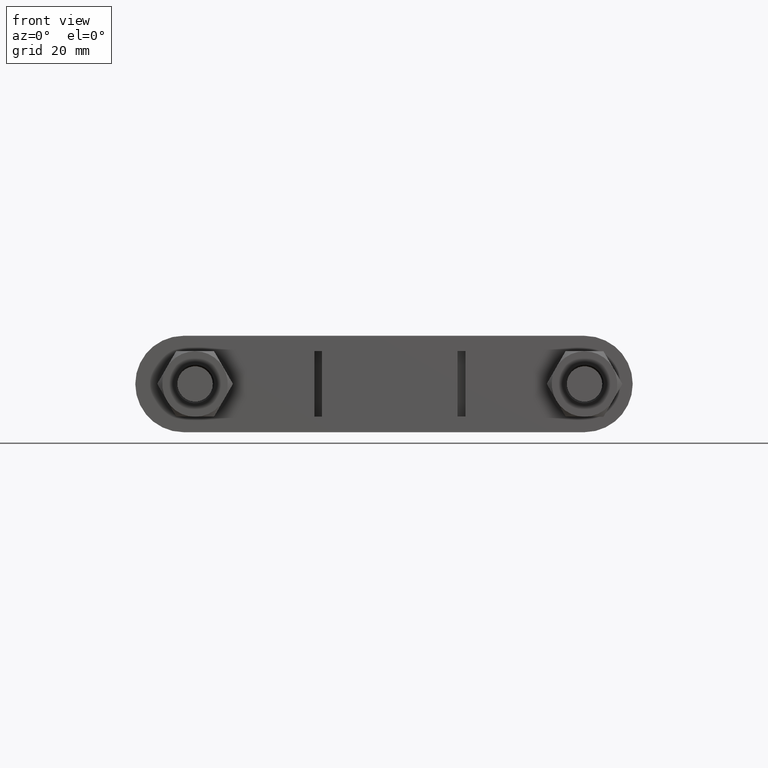
[diagram: clean part render]
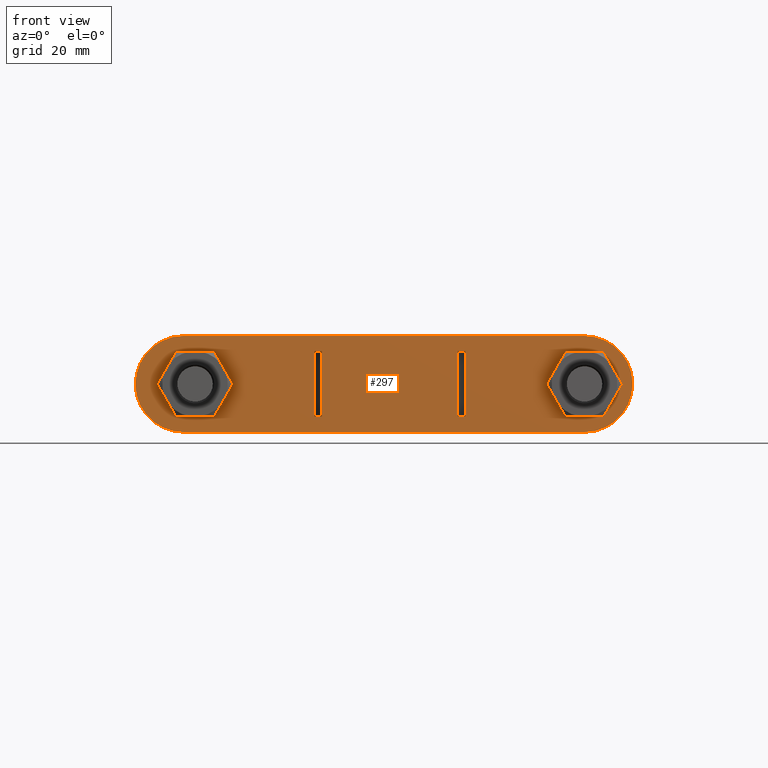
[diagram: same view with one face highlighted and labeled with its STEP entity id]
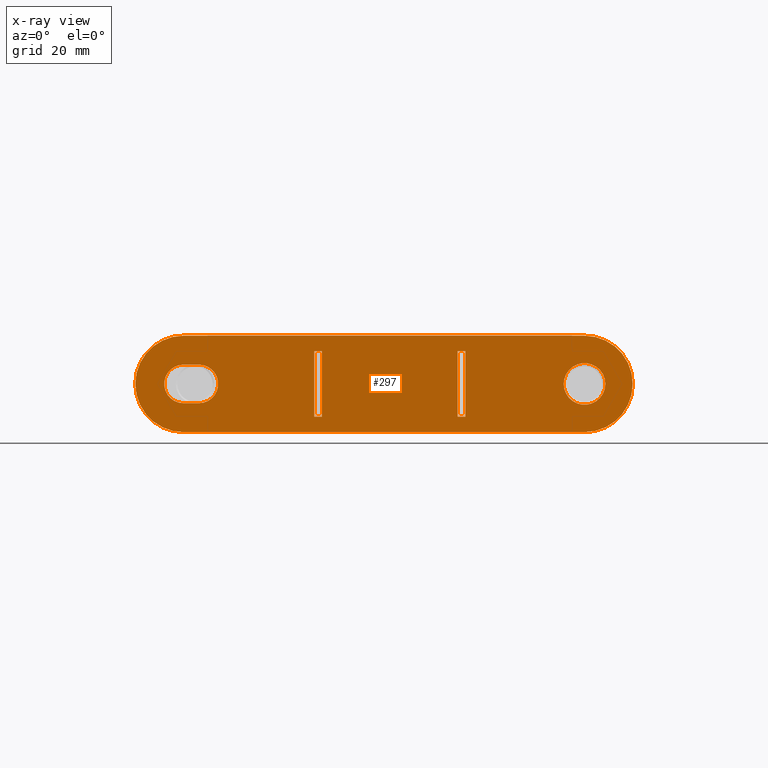
[diagram: x-ray of the same camera — body ghosted, the highlighted face saturated]
A machine part, front view. The second image highlights one B-rep face of the part: STEP entity #297.
The next image is the same camera in x-ray: the body ghosted, the highlighted face saturated — about 0% of this face is hidden behind the body in this view.
In plain terms, the highlighted planar face has unit normal (-0, 1, -0).
Its self-contained STEP definition (entity closure, byte-faithful):
#297 = ADVANCED_FACE( '', ( #451, #452, #453, #454, #455 ), #456, .F. );
#451 = FACE_BOUND( '', #1522, .T. );
#452 = FACE_OUTER_BOUND( '', #1523, .T. );
#453 = FACE_BOUND( '', #1524, .T. );
#454 = FACE_BOUND( '', #1525, .T. );
#455 = FACE_BOUND( '', #1526, .T. );
#456 = PLANE( '', #1527 );
#1522 = EDGE_LOOP( '', ( #1900, #1901, #1902, #1903 ) );
#1523 = EDGE_LOOP( '', ( #1904, #1905, #1906, #1907, #1908, #1909 ) );
#1524 = EDGE_LOOP( '', ( #1910 ) );
#1525 = EDGE_LOOP( '', ( #1911, #1912, #1913, #1914 ) );
#1526 = EDGE_LOOP( '', ( #1915, #1916, #1917, #1918 ) );
#1527 = AXIS2_PLACEMENT_3D( '', #1919, #1920, #1921 );
#1900 = ORIENTED_EDGE( '', *, *, #2581, .F. );
#1901 = ORIENTED_EDGE( '', *, *, #2582, .T. );
#1902 = ORIENTED_EDGE( '', *, *, #2583, .T. );
#1903 = ORIENTED_EDGE( '', *, *, #2584, .F. );
#1904 = ORIENTED_EDGE( '', *, *, #2585, .F. );
#1905 = ORIENTED_EDGE( '', *, *, #2586, .F. );
#1906 = ORIENTED_EDGE( '', *, *, #2587, .F. );
#1907 = ORIENTED_EDGE( '', *, *, #2588, .F. );
#1908 = ORIENTED_EDGE( '', *, *, #2589, .F. );
#1909 = ORIENTED_EDGE( '', *, *, #2590, .F. );
#1910 = ORIENTED_EDGE( '', *, *, #2591, .T. );
#1911 = ORIENTED_EDGE( '', *, *, #2592, .F. );
#1912 = ORIENTED_EDGE( '', *, *, #2593, .F. );
#1913 = ORIENTED_EDGE( '', *, *, #2594, .F. );
#1914 = ORIENTED_EDGE( '', *, *, #2595, .F. );
#1915 = ORIENTED_EDGE( '', *, *, #2596, .T. );
#1916 = ORIENTED_EDGE( '', *, *, #2597, .T. );
#1917 = ORIENTED_EDGE( '', *, *, #2598, .F. );
#1918 = ORIENTED_EDGE( '', *, *, #2599, .F. );
#1919 = CARTESIAN_POINT( '', ( -53.5000000000000, 34.2999999999975, 3.14294531216996E-009 ) );
#1920 = DIRECTION( '', ( -4.70212120677648E-014, 1.00000000000000, -6.03659968900138E-014 ) );
#1921 = DIRECTION( '', ( 5.87450643685463E-011, 6.03659968927761E-014, 1.00000000000000 ) );
#2581 = EDGE_CURVE( '', #2851, #2852, #2853, .T. );
#2582 = EDGE_CURVE( '', #2851, #2854, #2855, .T. );
#2583 = EDGE_CURVE( '', #2854, #2856, #2857, .T. );
#2584 = EDGE_CURVE( '', #2852, #2856, #2858, .T. );
#2585 = EDGE_CURVE( '', #2859, #2860, #2861, .T. );
#2586 = EDGE_CURVE( '', #2862, #2859, #2863, .T. );
#2587 = EDGE_CURVE( '', #2864, #2862, #2865, .T. );
#2588 = EDGE_CURVE( '', #2866, #2864, #2867, .T. );
#2589 = EDGE_CURVE( '', #2868, #2866, #2869, .T. );
#2590 = EDGE_CURVE( '', #2860, #2868, #2870, .T. );
#2591 = EDGE_CURVE( '', #2871, #2871, #2872, .T. );
#2592 = EDGE_CURVE( '', #2873, #2874, #2875, .T. );
#2593 = EDGE_CURVE( '', #2876, #2873, #2877, .T. );
#2594 = EDGE_CURVE( '', #2878, #2876, #2879, .T. );
#2595 = EDGE_CURVE( '', #2874, #2878, #2880, .T. );
#2596 = EDGE_CURVE( '', #2881, #2882, #2883, .T. );
#2597 = EDGE_CURVE( '', #2882, #2884, #2885, .T. );
#2598 = EDGE_CURVE( '', #2886, #2884, #2887, .T. );
#2599 = EDGE_CURVE( '', #2881, #2886, #2888, .T. );
#2851 = VERTEX_POINT( '', #3503 );
#2852 = VERTEX_POINT( '', #3504 );
#2853 = LINE( '', #3505, #3506 );
#2854 = VERTEX_POINT( '', #3507 );
#2855 = LINE( '', #3508, #3509 );
#2856 = VERTEX_POINT( '', #3510 );
#2857 = LINE( '', #3511, #3512 );
#2858 = LINE( '', #3513, #3514 );
#2859 = VERTEX_POINT( '', #3515 );
#2860 = VERTEX_POINT( '', #3516 );
#2861 = CIRCLE( '', #3517, 12.5000000000000 );
#2862 = VERTEX_POINT( '', #3518 );
#2863 = CIRCLE( '', #3519, 12.5000000000000 );
#2864 = VERTEX_POINT( '', #3520 );
#2865 = LINE( '', #3521, #3522 );
#2866 = VERTEX_POINT( '', #3523 );
#2867 = CIRCLE( '', #3524, 12.5000000000000 );
#2868 = VERTEX_POINT( '', #3525 );
#2869 = CIRCLE( '', #3526, 12.5000000000000 );
#2870 = LINE( '', #3527, #3528 );
#2871 = VERTEX_POINT( '', #3529 );
#2872 = CIRCLE( '', #3530, 5.40000000000000 );
#2873 = VERTEX_POINT( '', #3531 );
#2874 = VERTEX_POINT( '', #3532 );
#2875 = CIRCLE( '', #3533, 5.00000000000000 );
#2876 = VERTEX_POINT( '', #3534 );
#2877 = LINE( '', #3535, #3536 );
#2878 = VERTEX_POINT( '', #3537 );
#2879 = CIRCLE( '', #3538, 5.00000000000000 );
#2880 = LINE( '', #3539, #3540 );
#2881 = VERTEX_POINT( '', #3541 );
#2882 = VERTEX_POINT( '', #3542 );
#2883 = LINE( '', #3543, #3544 );
#2884 = VERTEX_POINT( '', #3545 );
#2885 = LINE( '', #3546, #3547 );
#2886 = VERTEX_POINT( '', #3548 );
#2887 = LINE( '', #3549, #3550 );
#2888 = LINE( '', #3551, #3552 );
#3503 = CARTESIAN_POINT( '', ( -19.6000000004991, 34.2999999999986, -8.49999999884852 ) );
#3504 = CARTESIAN_POINT( '', ( -17.6000000004991, 34.2999999999987, -8.49999999896601 ) );
#3505 = CARTESIAN_POINT( '', ( -19.6000000004992, 34.2999999999986, -8.49999999884852 ) );
#3506 = VECTOR( '', #4133, 1000.00000000000 );
#3507 = CARTESIAN_POINT( '', ( -19.5999999995005, 34.2999999999996, 8.50000000115148 ) );
#3508 = CARTESIAN_POINT( '', ( -19.6000000004991, 34.2999999999986, -8.49999999884852 ) );
#3509 = VECTOR( '', #4134, 1000.00000000000 );
#3510 = CARTESIAN_POINT( '', ( -17.5999999995005, 34.2999999999997, 8.50000000103399 ) );
#3511 = CARTESIAN_POINT( '', ( -19.5999999995005, 34.2999999999996, 8.50000000115148 ) );
#3512 = VECTOR( '', #4135, 1000.00000000000 );
#3513 = CARTESIAN_POINT( '', ( -17.6000000004991, 34.2999999999987, -8.49999999896601 ) );
#3514 = VECTOR( '', #4136, 1000.00000000000 );
#3515 = CARTESIAN_POINT( '', ( -66.0000000000000, 34.2999999999969, 3.87726208622374E-009 ) );
#3516 = CARTESIAN_POINT( '', ( -53.4999999992656, 34.2999999999983, 12.5000000031429 ) );
#3517 = AXIS2_PLACEMENT_3D( '', #4137, #4138, #4139 );
#3518 = CARTESIAN_POINT( '', ( -53.5000000007343, 34.2999999999968, -12.4999999968570 ) );
#3519 = AXIS2_PLACEMENT_3D( '', #4140, #4141, #4142 );
#3520 = CARTESIAN_POINT( '', ( 50.4999999992658, 34.3000000000016, -12.5000000029665 ) );
#3521 = CARTESIAN_POINT( '', ( 50.4999999992658, 34.3000000000016, -12.5000000029665 ) );
#3522 = VECTOR( '', #4143, 1000.00000000000 );
#3523 = CARTESIAN_POINT( '', ( 63.0000000000001, 34.3000000000030, -3.70085468676568E-009 ) );
#3524 = AXIS2_PLACEMENT_3D( '', #4144, #4145, #4146 );
#3525 = CARTESIAN_POINT( '', ( 50.5000000007344, 34.3000000000031, 12.4999999970335 ) );
#3526 = AXIS2_PLACEMENT_3D( '', #4147, #4148, #4149 );
#3527 = CARTESIAN_POINT( '', ( -53.4999999992656, 34.2999999999983, 12.5000000031429 ) );
#3528 = VECTOR( '', #4150, 1000.00000000000 );
#3529 = CARTESIAN_POINT( '', ( 55.9000000000001, 34.3000000000026, -3.28377166864291E-009 ) );
#3530 = AXIS2_PLACEMENT_3D( '', #4151, #4152, #4153 );
#3531 = CARTESIAN_POINT( '', ( -53.4999999997063, 34.2999984999296, 5.00000000314293 ) );
#3532 = CARTESIAN_POINT( '', ( -53.5000000002937, 34.2999984999290, -4.99999999685706 ) );
#3533 = AXIS2_PLACEMENT_3D( '', #4154, #4155, #4156 );
#3534 = CARTESIAN_POINT( '', ( -49.4999999997062, 34.2999984999298, 5.00000000290795 ) );
#3535 = CARTESIAN_POINT( '', ( -49.4999999997062, 34.2999984999298, 5.00000000290795 ) );
#3536 = VECTOR( '', #4157, 1000.00000000000 );
#3537 = CARTESIAN_POINT( '', ( -49.5000000002937, 34.2999984999292, -4.99999999709204 ) );
#3538 = AXIS2_PLACEMENT_3D( '', #4158, #4159, #4160 );
#3539 = CARTESIAN_POINT( '', ( -53.5000000002937, 34.2999984999290, -4.99999999685706 ) );
#3540 = VECTOR( '', #4161, 1000.00000000000 );
#3541 = CARTESIAN_POINT( '', ( 19.5999999995014, 34.3000000000004, -8.50000000115159 ) );
#3542 = CARTESIAN_POINT( '', ( 17.5999999995013, 34.3000000000003, -8.50000000103409 ) );
#3543 = CARTESIAN_POINT( '', ( 19.5999999995014, 34.3000000000004, -8.50000000115158 ) );
#3544 = VECTOR( '', #4162, 1000.00000000004 );
#3545 = CARTESIAN_POINT( '', ( 17.6000000005000, 34.3000000000013, 8.49999999896642 ) );
#3546 = CARTESIAN_POINT( '', ( 17.5999999995013, 34.3000000000003, -8.50000000103409 ) );
#3547 = VECTOR( '', #4163, 1000.00000000003 );
#3548 = CARTESIAN_POINT( '', ( 19.6000000005001, 34.3000000000015, 8.49999999884892 ) );
#3549 = CARTESIAN_POINT( '', ( 19.6000000005001, 34.3000000000014, 8.49999999884893 ) );
#3550 = VECTOR( '', #4164, 1000.00000000004 );
#3551 = CARTESIAN_POINT( '', ( 19.5999999995014, 34.3000000000004, -8.50000000115159 ) );
#3552 = VECTOR( '', #4165, 1000.00000000003 );
#4133 = DIRECTION( '', ( 1.00000000000000, 4.70212120642186E-014, -5.87450643685463E-011 ) );
#4134 = DIRECTION( '', ( 5.87449659772266E-011, 6.05769977587262E-014, 1.00000000000000 ) );
#4135 = DIRECTION( '', ( 1.00000000000000, 4.70212120642186E-014, -5.87450643685463E-011 ) );
#4136 = DIRECTION( '', ( 5.87449659772266E-011, 6.05769977587262E-014, 1.00000000000000 ) );
#4137 = CARTESIAN_POINT( '', ( -53.5000000000000, 34.2999999999975, 3.14294531216996E-009 ) );
#4138 = DIRECTION( '', ( -4.70212120677648E-014, 1.00000000000000, -6.03659968900138E-014 ) );
#4139 = DIRECTION( '', ( -1.00000000000000, -4.70212120642186E-014, 5.87449255906682E-011 ) );
#4140 = CARTESIAN_POINT( '', ( -53.5000000000000, 34.2999999999975, 3.14294878161691E-009 ) );
#4141 = DIRECTION( '', ( -4.70212120677648E-014, 1.00000000000000, -6.03659968900138E-014 ) );
#4142 = DIRECTION( '', ( -5.87450643685463E-011, -6.03659968927761E-014, -1.00000000000000 ) );
#4143 = DIRECTION( '', ( -1.00000000000000, -4.70212120642186E-014, 5.87450643685463E-011 ) );
#4144 = CARTESIAN_POINT( '', ( 50.5000000000001, 34.3000000000024, -2.96653791271190E-009 ) );
#4145 = DIRECTION( '', ( -4.70212120677648E-014, 1.00000000000000, -6.03659968900138E-014 ) );
#4146 = DIRECTION( '', ( 1.00000000000000, 4.70212120642186E-014, -5.87449255906682E-011 ) );
#4147 = CARTESIAN_POINT( '', ( 50.5000000000001, 34.3000000000024, -2.96654138215886E-009 ) );
#4148 = DIRECTION( '', ( -4.70212120677648E-014, 1.00000000000000, -6.03659968900138E-014 ) );
#4149 = DIRECTION( '', ( 5.87450643685463E-011, 6.03659968927761E-014, 1.00000000000000 ) );
#4150 = DIRECTION( '', ( 1.00000000000000, 4.70212120642186E-014, -5.87450643685463E-011 ) );
#4151 = CARTESIAN_POINT( '', ( 50.5000000000001, 34.3000000000024, -2.96654832105276E-009 ) );
#4152 = DIRECTION( '', ( -4.70212120677648E-014, 1.00000000000000, -6.03659968900138E-014 ) );
#4153 = DIRECTION( '', ( 1.00000000000000, 4.70212120642186E-014, -5.87450643685463E-011 ) );
#4154 = CARTESIAN_POINT( '', ( -53.5000000000000, 34.2999984999293, 3.14293316919618E-009 ) );
#4155 = DIRECTION( '', ( 4.70212120677648E-014, -1.00000000000000, 6.03659968900138E-014 ) );
#4156 = DIRECTION( '', ( 5.87450643685463E-011, 6.03659968927761E-014, 1.00000000000000 ) );
#4157 = DIRECTION( '', ( -1.00000000000000, -4.70212120642186E-014, 5.87450643685463E-011 ) );
#4158 = CARTESIAN_POINT( '', ( -49.5000000000000, 34.2999984999295, 2.90795291172200E-009 ) );
#4159 = DIRECTION( '', ( 4.70212120677648E-014, -1.00000000000000, 6.03659968900138E-014 ) );
#4160 = DIRECTION( '', ( -5.87450643685463E-011, -6.03659968927761E-014, -1.00000000000000 ) );
#4161 = DIRECTION( '', ( 1.00000000000000, 4.70212120642186E-014, -5.87450643685463E-011 ) );
#4162 = DIRECTION( '', ( -1.00000000000000, -4.68987514288364E-014, 5.87450643685463E-011 ) );
#4163 = DIRECTION( '', ( 5.87451627598659E-011, 6.05769977587262E-014, 1.00000000000000 ) );
#4164 = DIRECTION( '', ( -1.00000000000000, -4.68987514288364E-014, 5.87450643685463E-011 ) );
#4165 = DIRECTION( '', ( 5.87451627598659E-011, 6.05769977587262E-014, 1.00000000000000 ) );